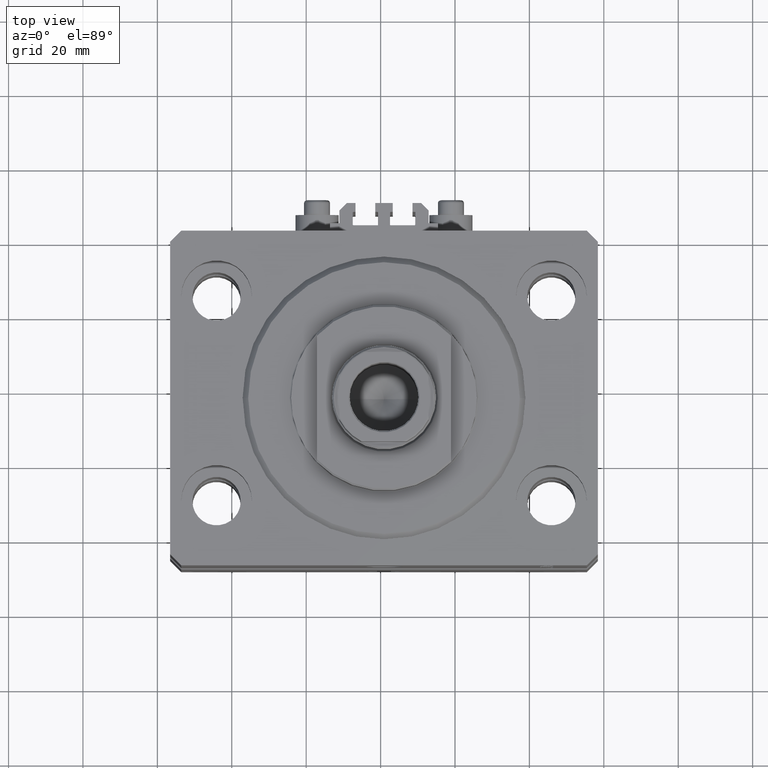
[diagram: clean part render]
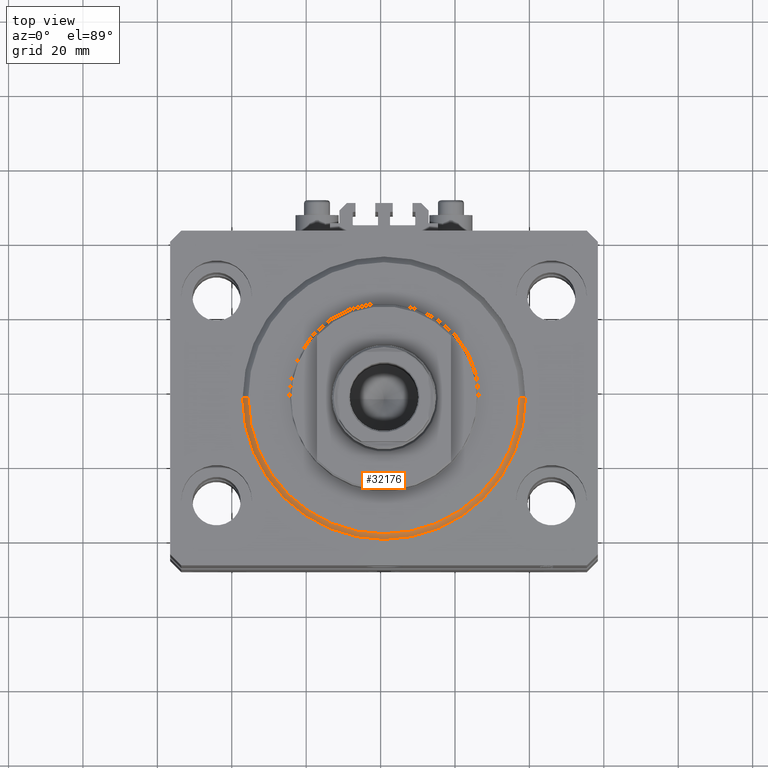
[diagram: same view with one face highlighted and labeled with its STEP entity id]
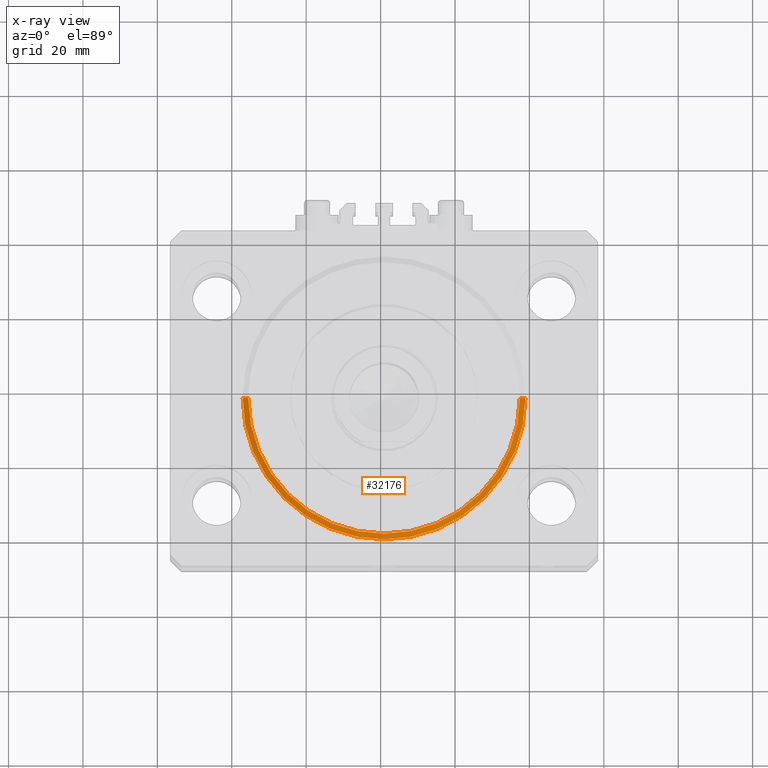
[diagram: x-ray of the same camera — body ghosted, the highlighted face saturated]
A machine part, top view. The second image highlights one B-rep face of the part: STEP entity #32176.
The next image is the same camera in x-ray: the body ghosted, the highlighted face saturated — about 0% of this face is hidden behind the body in this view.
In plain terms, the highlighted conical surface has half-angle 45 deg.
Its self-contained STEP definition (entity closure, byte-faithful):
#717 = CONICAL_SURFACE ( 'NONE', #26912, 38.00000000000000000, 0.7853981633974506105 ) ;
#3048 = DIRECTION ( 'NONE',  ( 0.7071067811865491270, 0.000000000000000000, 0.7071067811865459074 ) ) ;
#3701 = DIRECTION ( 'NONE',  ( -0.7071067811865491270, 8.659560562354953812E-17, 0.7071067811865459074 ) ) ;
#7495 = DIRECTION ( 'NONE',  ( 1.000000000000000000, 0.000000000000000000, 0.000000000000000000 ) ) ;
#7795 = VERTEX_POINT ( 'NONE', #24344 ) ;
#8056 = ORIENTED_EDGE ( 'NONE', *, *, #18412, .F. ) ;
#9477 = EDGE_LOOP ( 'NONE', ( #43028, #14307, #12990, #8056 ) ) ;
#10752 = DIRECTION ( 'NONE',  ( 1.000000000000000000, 0.000000000000000000, 0.000000000000000000 ) ) ;
#12990 = ORIENTED_EDGE ( 'NONE', *, *, #31097, .T. ) ;
#14307 = ORIENTED_EDGE ( 'NONE', *, *, #36290, .F. ) ;
#16661 = VECTOR ( 'NONE', #3048, 1000.000000000000114 ) ;
#17182 = CIRCLE ( 'NONE', #26682, 38.00000000000000000 ) ;
#18211 = DIRECTION ( 'NONE',  ( -0.000000000000000000, -0.000000000000000000, -1.000000000000000000 ) ) ;
#18412 = EDGE_CURVE ( 'NONE', #22179, #40021, #17182, .T. ) ;
#20085 = VECTOR ( 'NONE', #3701, 1000.000000000000114 ) ;
#22179 = VERTEX_POINT ( 'NONE', #23810 ) ;
#23802 = CARTESIAN_POINT ( 'NONE',  ( 0.000000000000000000, 0.000000000000000000, 1.499999999999994449 ) ) ;
#23810 = CARTESIAN_POINT ( 'NONE',  ( -38.00000000000000000, 0.000000000000000000, 1.499999999999994449 ) ) ;
#24344 = CARTESIAN_POINT ( 'NONE',  ( 36.50000000000000000, 0.000000000000000000, 0.000000000000000000 ) ) ;
#25422 = CARTESIAN_POINT ( 'NONE',  ( 38.00000000000000000, 0.000000000000000000, 1.499999999999994449 ) ) ;
#26682 = AXIS2_PLACEMENT_3D ( 'NONE', #23802, #35742, #46442 ) ;
#26912 = AXIS2_PLACEMENT_3D ( 'NONE', #29656, #44828, #10752 ) ;
#27534 = VERTEX_POINT ( 'NONE', #34959 ) ;
#29644 = LINE ( 'NONE', #25422, #16661 ) ;
#29656 = CARTESIAN_POINT ( 'NONE',  ( 0.000000000000000000, 0.000000000000000000, 1.499999999999994449 ) ) ;
#30536 = LINE ( 'NONE', #38240, #20085 ) ;
#31097 = EDGE_CURVE ( 'NONE', #7795, #40021, #29644, .T. ) ;
#32176 = ADVANCED_FACE ( 'NONE', ( #48558 ), #717, .T. ) ;
#34959 = CARTESIAN_POINT ( 'NONE',  ( -36.50000000000000000, 4.561809326823889791E-15, 0.000000000000000000 ) ) ;
#35556 = CARTESIAN_POINT ( 'NONE',  ( 38.00000000000000000, 4.653657836759941941E-15, 1.499999999999994449 ) ) ;
#35742 = DIRECTION ( 'NONE',  ( -0.000000000000000000, -0.000000000000000000, 1.000000000000000000 ) ) ;
#36290 = EDGE_CURVE ( 'NONE', #7795, #27534, #42237, .T. ) ;
#38240 = CARTESIAN_POINT ( 'NONE',  ( -38.00000000000000000, 4.653657836759941941E-15, 1.499999999999994449 ) ) ;
#40021 = VERTEX_POINT ( 'NONE', #35556 ) ;
#41804 = CARTESIAN_POINT ( 'NONE',  ( 0.000000000000000000, 0.000000000000000000, 0.000000000000000000 ) ) ;
#42237 = CIRCLE ( 'NONE', #43807, 36.50000000000000000 ) ;
#42820 = EDGE_CURVE ( 'NONE', #27534, #22179, #30536, .T. ) ;
#43028 = ORIENTED_EDGE ( 'NONE', *, *, #42820, .F. ) ;
#43807 = AXIS2_PLACEMENT_3D ( 'NONE', #41804, #18211, #7495 ) ;
#44828 = DIRECTION ( 'NONE',  ( -0.000000000000000000, -0.000000000000000000, 1.000000000000000000 ) ) ;
#46442 = DIRECTION ( 'NONE',  ( 1.000000000000000000, 0.000000000000000000, 0.000000000000000000 ) ) ;
#48558 = FACE_OUTER_BOUND ( 'NONE', #9477, .T. ) ;